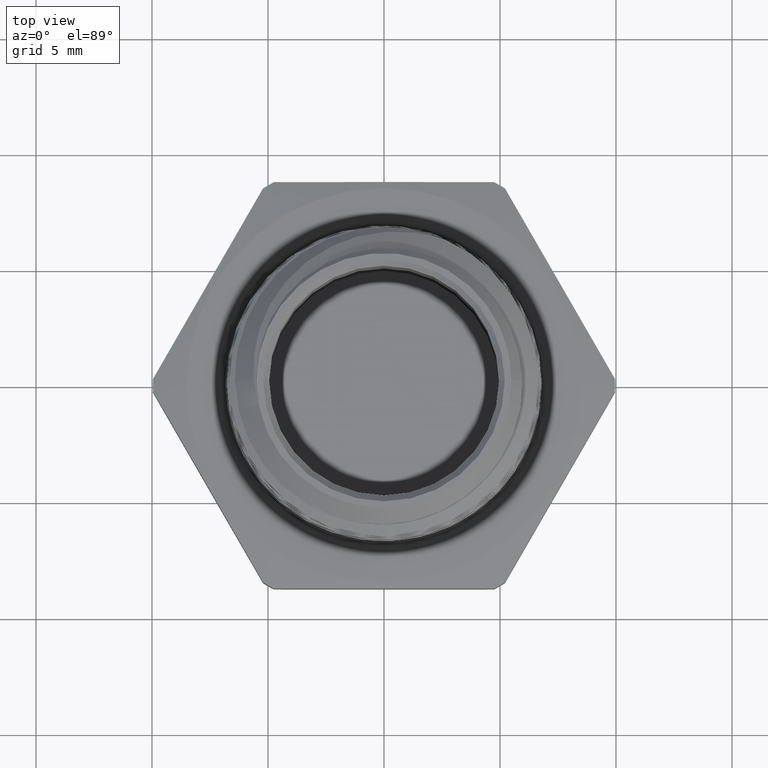
[diagram: clean part render]
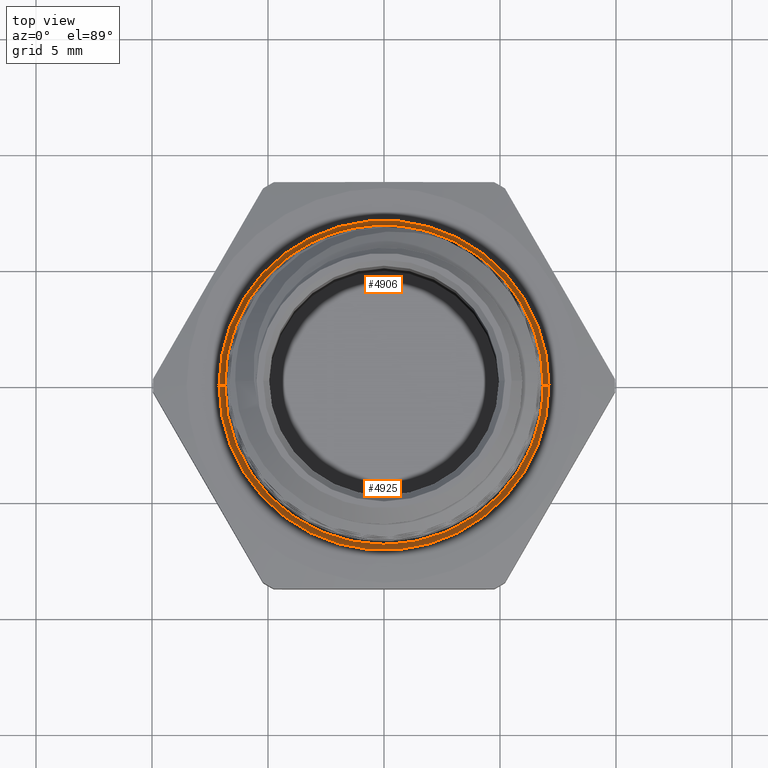
[diagram: same view with one multi-face feature highlighted, each face labeled with its STEP entity id]
A machine part, top view. The highlighted faces form ONE feature: a constant-radius fillet chain: 2 tangent blend faces with common blend radius 0.254 mm. The faces share edges in the B-rep.
Their STEP definitions:
[1] entity #4906 (Torus):
#683 = AXIS2_PLACEMENT_3D ( 'NONE', #4798, #4797, #4796 ) ;
#686 = AXIS2_PLACEMENT_3D ( 'NONE', #3103, #3104, #3105 ) ;
#713 = AXIS2_PLACEMENT_3D ( 'NONE', #4429, #4430, #4431 ) ;
#715 = AXIS2_PLACEMENT_3D ( 'NONE', #4436, #4437, #4438 ) ;
#772 = AXIS2_PLACEMENT_3D ( 'NONE', #3524, #3522, #3526 ) ;
#1665 = EDGE_CURVE ( 'NONE', #1848, #1850, #2570, .T. ) ;
#1713 = EDGE_CURVE ( 'NONE', #1833, #1872, #2603, .T. ) ;
#1773 = EDGE_CURVE ( 'NONE', #1848, #1872, #2676, .T. ) ;
#1775 = EDGE_CURVE ( 'NONE', #1850, #1833, #2678, .T. ) ;
#1833 = VERTEX_POINT ( 'NONE', #4529 ) ;
#1848 = VERTEX_POINT ( 'NONE', #4542 ) ;
#1850 = VERTEX_POINT ( 'NONE', #4544 ) ;
#1872 = VERTEX_POINT ( 'NONE', #4566 ) ;
#1953 = EDGE_LOOP ( 'NONE', ( #5024, #4973, #4979, #4946 ) ) ;
#2570 = CIRCLE ( 'NONE', #683, 0.2700000000000000200 ) ;
#2603 = CIRCLE ( 'NONE', #686, 0.2800000000000000300 ) ;
#2676 = CIRCLE ( 'NONE', #713, 0.009999999999999995000 ) ;
#2678 = CIRCLE ( 'NONE', #715, 0.009999999999999995000 ) ;
#3103 = CARTESIAN_POINT ( 'NONE',  ( 0.0000000000000000000, 0.0000000000000000000, 0.1100000000000000000 ) ) ;
#3104 = DIRECTION ( 'NONE',  ( 0.0000000000000000000, -0.0000000000000000000, -1.000000000000000000 ) ) ;
#3105 = DIRECTION ( 'NONE',  ( 1.000000000000000000, 0.0000000000000000000, 0.0000000000000000000 ) ) ;
#3522 = DIRECTION ( 'NONE',  ( -0.0000000000000000000, 0.0000000000000000000, 1.000000000000000000 ) ) ;
#3524 = CARTESIAN_POINT ( 'NONE',  ( 0.0000000000000000000, 0.0000000000000000000, 0.1200000000000000200 ) ) ;
#3526 = DIRECTION ( 'NONE',  ( 1.000000000000000000, 0.0000000000000000000, 0.0000000000000000000 ) ) ;
#4429 = CARTESIAN_POINT ( 'NONE',  ( 0.2800000000000000300, 0.0000000000000000000, 0.1200000000000000200 ) ) ;
#4430 = DIRECTION ( 'NONE',  ( 0.0000000000000000000, -1.000000000000000000, 0.0000000000000000000 ) ) ;
#4431 = DIRECTION ( 'NONE',  ( 0.0000000000000000000, 0.0000000000000000000, -1.000000000000000000 ) ) ;
#4436 = CARTESIAN_POINT ( 'NONE',  ( -0.2800000000000000300, 3.429011037612588800E-017, 0.1200000000000000200 ) ) ;
#4437 = DIRECTION ( 'NONE',  ( 1.224646799147353200E-016, 1.000000000000000000, 0.0000000000000000000 ) ) ;
#4438 = DIRECTION ( 'NONE',  ( -1.000000000000000000, 1.224646799147351000E-016, 0.0000000000000000000 ) ) ;
#4529 = CARTESIAN_POINT ( 'NONE',  ( -0.2800000000000000300, 3.429011037612588800E-017, 0.1100000000000000300 ) ) ;
#4542 = CARTESIAN_POINT ( 'NONE',  ( 0.2700000000000000200, 3.306546357697853700E-017, 0.1200000000000000200 ) ) ;
#4544 = CARTESIAN_POINT ( 'NONE',  ( -0.2700000000000000200, 0.0000000000000000000, 0.1200000000000000200 ) ) ;
#4566 = CARTESIAN_POINT ( 'NONE',  ( 0.2800000000000000300, 0.0000000000000000000, 0.1100000000000000300 ) ) ;
#4796 = DIRECTION ( 'NONE',  ( 1.000000000000000000, 0.0000000000000000000, 0.0000000000000000000 ) ) ;
#4797 = DIRECTION ( 'NONE',  ( -0.0000000000000000000, 0.0000000000000000000, 1.000000000000000000 ) ) ;
#4798 = CARTESIAN_POINT ( 'NONE',  ( 0.0000000000000000000, 0.0000000000000000000, 0.1200000000000000200 ) ) ;
#4906 = ADVANCED_FACE ( 'NONE', ( #5238 ), #5237, .F. ) ;
#4946 = ORIENTED_EDGE ( 'NONE', *, *, #1713, .F. ) ;
#4973 = ORIENTED_EDGE ( 'NONE', *, *, #1665, .F. ) ;
#4979 = ORIENTED_EDGE ( 'NONE', *, *, #1773, .T. ) ;
#5024 = ORIENTED_EDGE ( 'NONE', *, *, #1775, .F. ) ;
#5237 = TOROIDAL_SURFACE ( 'NONE', #772, 0.2800000000000000300, 0.01000000000000000000 ) ;
#5238 = FACE_OUTER_BOUND ( 'NONE', #1953, .T. ) ;
[2] entity #4925 (Torus):
#713 = AXIS2_PLACEMENT_3D ( 'NONE', #4429, #4430, #4431 ) ;
#714 = AXIS2_PLACEMENT_3D ( 'NONE', #4432, #4433, #4434 ) ;
#715 = AXIS2_PLACEMENT_3D ( 'NONE', #4436, #4437, #4438 ) ;
#716 = AXIS2_PLACEMENT_3D ( 'NONE', #4440, #4441, #4442 ) ;
#804 = AXIS2_PLACEMENT_3D ( 'NONE', #2459, #2458, #2461 ) ;
#1773 = EDGE_CURVE ( 'NONE', #1848, #1872, #2676, .T. ) ;
#1774 = EDGE_CURVE ( 'NONE', #1872, #1833, #2675, .T. ) ;
#1775 = EDGE_CURVE ( 'NONE', #1850, #1833, #2678, .T. ) ;
#1776 = EDGE_CURVE ( 'NONE', #1850, #1848, #2677, .T. ) ;
#1803 = EDGE_LOOP ( 'NONE', ( #4983, #5028, #4987, #5040 ) ) ;
#1833 = VERTEX_POINT ( 'NONE', #4529 ) ;
#1848 = VERTEX_POINT ( 'NONE', #4542 ) ;
#1850 = VERTEX_POINT ( 'NONE', #4544 ) ;
#1872 = VERTEX_POINT ( 'NONE', #4566 ) ;
#2458 = DIRECTION ( 'NONE',  ( -0.0000000000000000000, 0.0000000000000000000, 1.000000000000000000 ) ) ;
#2459 = CARTESIAN_POINT ( 'NONE',  ( 0.0000000000000000000, 0.0000000000000000000, 0.1200000000000000200 ) ) ;
#2461 = DIRECTION ( 'NONE',  ( 1.000000000000000000, 0.0000000000000000000, 0.0000000000000000000 ) ) ;
#2675 = CIRCLE ( 'NONE', #714, 0.2800000000000000300 ) ;
#2676 = CIRCLE ( 'NONE', #713, 0.009999999999999995000 ) ;
#2677 = CIRCLE ( 'NONE', #716, 0.2700000000000000200 ) ;
#2678 = CIRCLE ( 'NONE', #715, 0.009999999999999995000 ) ;
#4429 = CARTESIAN_POINT ( 'NONE',  ( 0.2800000000000000300, 0.0000000000000000000, 0.1200000000000000200 ) ) ;
#4430 = DIRECTION ( 'NONE',  ( 0.0000000000000000000, -1.000000000000000000, 0.0000000000000000000 ) ) ;
#4431 = DIRECTION ( 'NONE',  ( 0.0000000000000000000, 0.0000000000000000000, -1.000000000000000000 ) ) ;
#4432 = CARTESIAN_POINT ( 'NONE',  ( 0.0000000000000000000, 0.0000000000000000000, 0.1100000000000000000 ) ) ;
#4433 = DIRECTION ( 'NONE',  ( 0.0000000000000000000, -0.0000000000000000000, -1.000000000000000000 ) ) ;
#4434 = DIRECTION ( 'NONE',  ( 1.000000000000000000, 0.0000000000000000000, 0.0000000000000000000 ) ) ;
#4436 = CARTESIAN_POINT ( 'NONE',  ( -0.2800000000000000300, 3.429011037612588800E-017, 0.1200000000000000200 ) ) ;
#4437 = DIRECTION ( 'NONE',  ( 1.224646799147353200E-016, 1.000000000000000000, 0.0000000000000000000 ) ) ;
#4438 = DIRECTION ( 'NONE',  ( -1.000000000000000000, 1.224646799147351000E-016, 0.0000000000000000000 ) ) ;
#4440 = CARTESIAN_POINT ( 'NONE',  ( 0.0000000000000000000, 0.0000000000000000000, 0.1200000000000000200 ) ) ;
#4441 = DIRECTION ( 'NONE',  ( -0.0000000000000000000, 0.0000000000000000000, 1.000000000000000000 ) ) ;
#4442 = DIRECTION ( 'NONE',  ( 1.000000000000000000, 0.0000000000000000000, 0.0000000000000000000 ) ) ;
#4529 = CARTESIAN_POINT ( 'NONE',  ( -0.2800000000000000300, 3.429011037612588800E-017, 0.1100000000000000300 ) ) ;
#4542 = CARTESIAN_POINT ( 'NONE',  ( 0.2700000000000000200, 3.306546357697853700E-017, 0.1200000000000000200 ) ) ;
#4544 = CARTESIAN_POINT ( 'NONE',  ( -0.2700000000000000200, 0.0000000000000000000, 0.1200000000000000200 ) ) ;
#4566 = CARTESIAN_POINT ( 'NONE',  ( 0.2800000000000000300, 0.0000000000000000000, 0.1100000000000000300 ) ) ;
#4925 = ADVANCED_FACE ( 'NONE', ( #5278 ), #5281, .F. ) ;
#4983 = ORIENTED_EDGE ( 'NONE', *, *, #1776, .F. ) ;
#4987 = ORIENTED_EDGE ( 'NONE', *, *, #1774, .F. ) ;
#5028 = ORIENTED_EDGE ( 'NONE', *, *, #1775, .T. ) ;
#5040 = ORIENTED_EDGE ( 'NONE', *, *, #1773, .F. ) ;
#5278 = FACE_OUTER_BOUND ( 'NONE', #1803, .T. ) ;
#5281 = TOROIDAL_SURFACE ( 'NONE', #804, 0.2800000000000000300, 0.01000000000000000000 ) ;